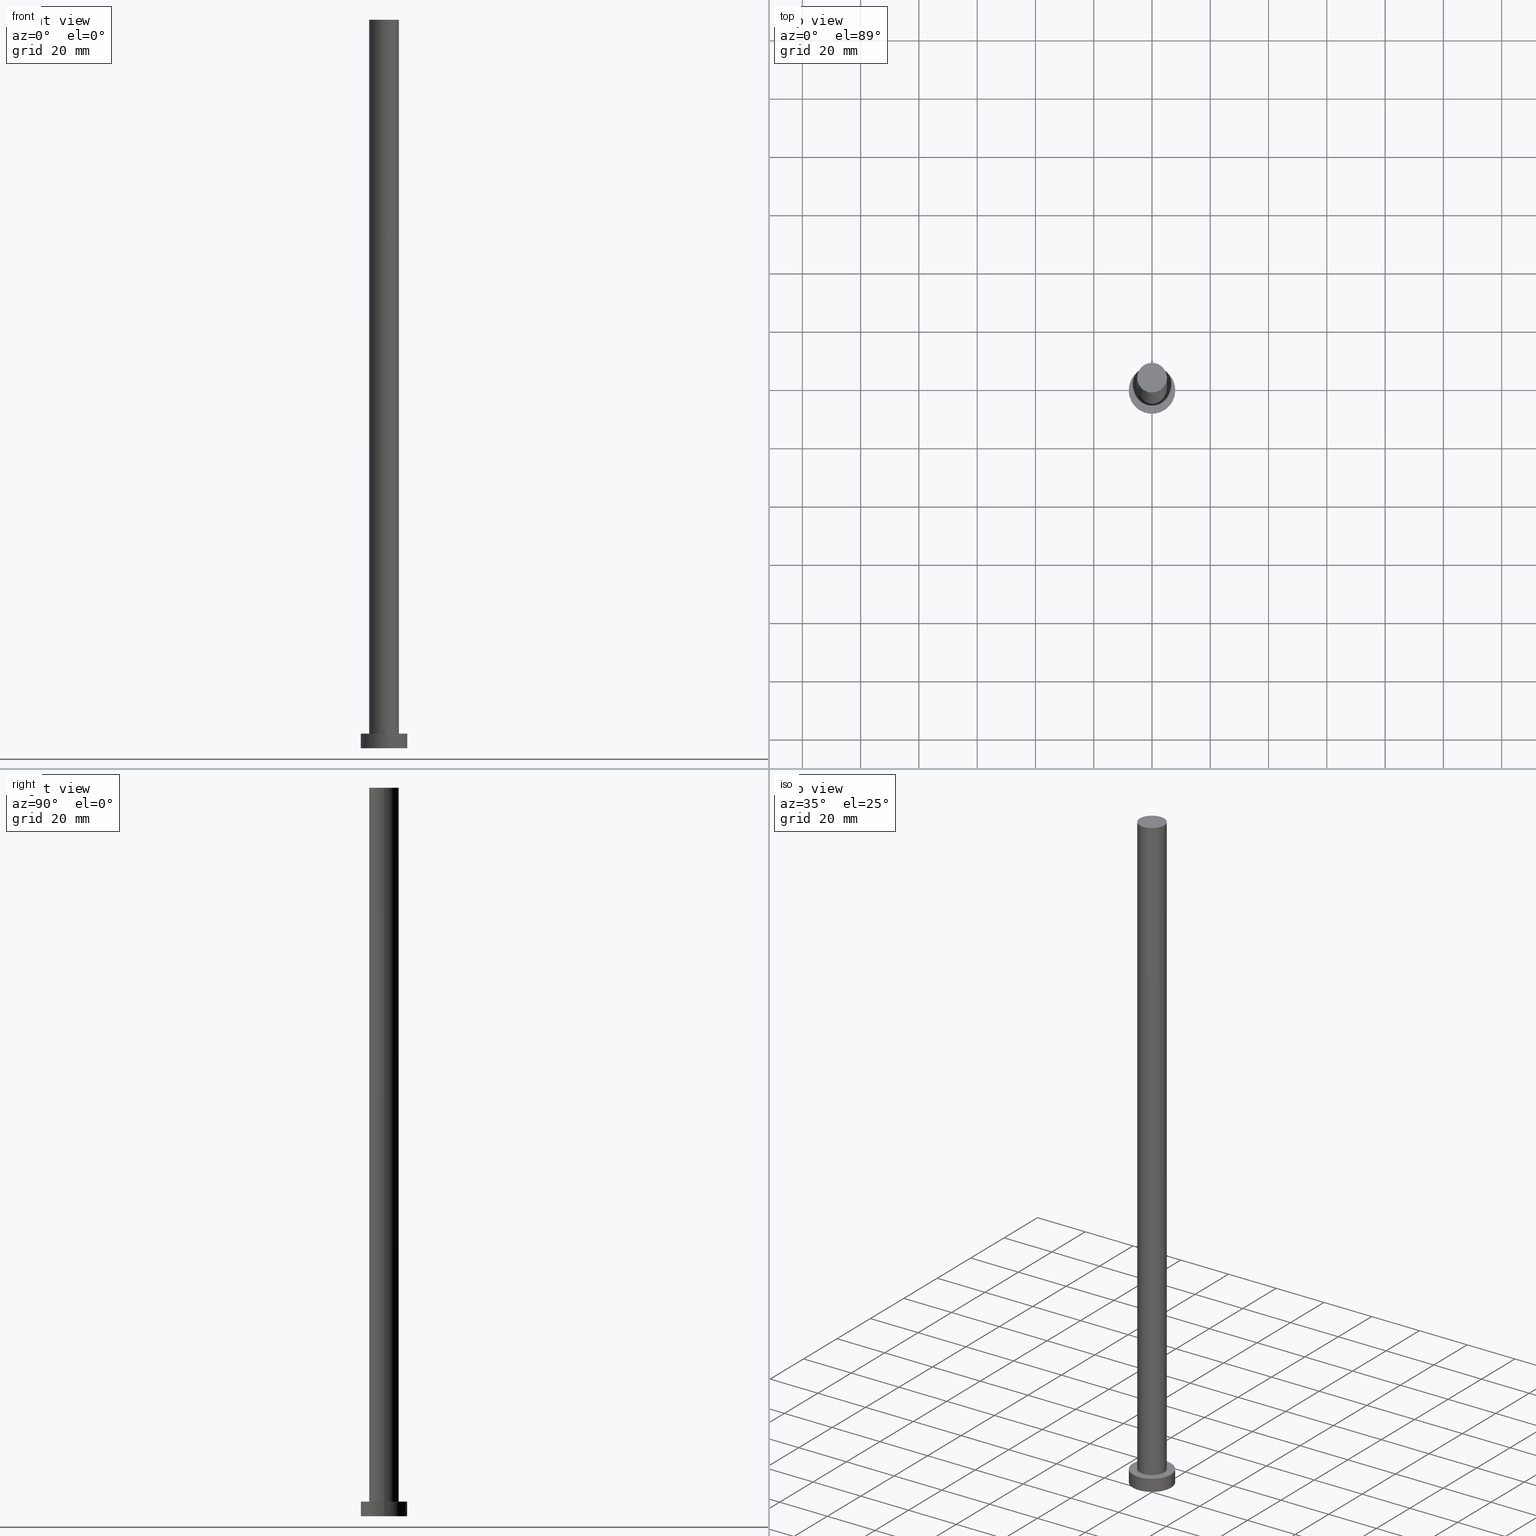
[diagram: canonical four-view strip — front | top / right | iso, engineering-drawing reading convention]
A machine part, canonical four-view strip (front | top / right | iso — engineering-drawing reading convention). The complete STEP part file that produces these views, byte-faithful:
ISO-10303-21;
HEADER;
FILE_DESCRIPTION (( 'STEP AP203' ),
    '1' );
FILE_NAME ('aee2.STEP',
    '2023-02-13T13:15:29',
    ( '' ),
    ( '' ),
    'SwSTEP 2.0',
    'SolidWorks 2019',
    '' );
FILE_SCHEMA (( 'CONFIG_CONTROL_DESIGN' ));
ENDSEC;

DATA;
#1 = CARTESIAN_POINT ( 'NONE',  ( 8.000000000000000000, 9.797174393178825657E-16, 0.000000000000000000 ) ) ;
#2 = CC_DESIGN_DATE_AND_TIME_ASSIGNMENT ( #148, #184, ( #109 ) ) ;
#3 = FACE_OUTER_BOUND ( 'NONE', #195, .T. ) ;
#4 = CYLINDRICAL_SURFACE ( 'NONE', #129, 8.000000000000000000 ) ;
#5 = DIRECTION ( 'NONE',  ( -0.000000000000000000, -0.000000000000000000, -1.000000000000000000 ) ) ;
#6 = CARTESIAN_POINT ( 'NONE',  ( 8.000000000000000000, 9.797174393178825657E-16, 5.000000000000000000 ) ) ;
#7 = PERSON_AND_ORGANIZATION ( #48, #46 ) ;
#8 = COORDINATED_UNIVERSAL_TIME_OFFSET ( 1, 0, .AHEAD. ) ;
#9 = DATE_AND_TIME ( #249, #32 ) ;
#10 = COORDINATED_UNIVERSAL_TIME_OFFSET ( 1, 0, .AHEAD. ) ;
#11 = SECURITY_CLASSIFICATION_LEVEL ( 'unclassified' ) ;
#12 = DATE_AND_TIME ( #229, #173 ) ;
#13 = ORIENTED_EDGE ( 'NONE', *, *, #187, .T. ) ;
#14 = CIRCLE ( 'NONE', #141, 8.000000000000000000 ) ;
#15 = EDGE_LOOP ( 'NONE', ( #133, #172, #217, #193 ) ) ;
#16 = CC_DESIGN_APPROVAL ( #194, ( #212 ) ) ;
#17 = ORIENTED_EDGE ( 'NONE', *, *, #101, .F. ) ;
#18 = ORIENTED_EDGE ( 'NONE', *, *, #251, .F. ) ;
#19 = DIRECTION ( 'NONE',  ( 1.000000000000000000, 0.000000000000000000, 0.000000000000000000 ) ) ;
#20 = CARTESIAN_POINT ( 'NONE',  ( -5.099999999999999645, 0.000000000000000000, 250.0000000000000000 ) ) ;
#21 = DIRECTION ( 'NONE',  ( 0.000000000000000000, 0.000000000000000000, 1.000000000000000000 ) ) ;
#22 = AXIS2_PLACEMENT_3D ( 'NONE', #241, #71, #64 ) ;
#23 = CC_DESIGN_SECURITY_CLASSIFICATION ( #109, ( #212 ) ) ;
#24 = FACE_OUTER_BOUND ( 'NONE', #15, .T. ) ;
#25 = EDGE_CURVE ( 'NONE', #192, #135, #233, .T. ) ;
#26 = CARTESIAN_POINT ( 'NONE',  ( 0.000000000000000000, 0.000000000000000000, 5.000000000000000000 ) ) ;
#27 = PERSON_AND_ORGANIZATION_ROLE ( 'design_supplier' ) ;
#28 = AXIS2_PLACEMENT_3D ( 'NONE', #26, #175, #41 ) ;
#29 = APPROVAL_STATUS ( 'not_yet_approved' ) ;
#30 = ADVANCED_FACE ( 'NONE', ( #36 ), #158, .T. ) ;
#31 = DIRECTION ( 'NONE',  ( 1.000000000000000000, 0.000000000000000000, 0.000000000000000000 ) ) ;
#32 = LOCAL_TIME ( 14, 15, 29.00000000000000000, #127 ) ;
#33 = APPROVAL_STATUS ( 'not_yet_approved' ) ;
#34 = VERTEX_POINT ( 'NONE', #139 ) ;
#35 = AXIS2_PLACEMENT_3D ( 'NONE', #85, #88, #106 ) ;
#36 = FACE_OUTER_BOUND ( 'NONE', #58, .T. ) ;
#37 = CC_DESIGN_APPROVAL ( #235, ( #109 ) ) ;
#38 = ORIENTED_EDGE ( 'NONE', *, *, #176, .T. ) ;
#39 = VERTEX_POINT ( 'NONE', #253 ) ;
#40 = AXIS2_PLACEMENT_3D ( 'NONE', #239, #67, #205 ) ;
#41 = DIRECTION ( 'NONE',  ( 1.000000000000000000, 0.000000000000000000, -0.000000000000000000 ) ) ;
#42 = CARTESIAN_POINT ( 'NONE',  ( 5.099999999999999645, 6.245698675651500839E-16, 250.0000000000000000 ) ) ;
#43 = DIRECTION ( 'NONE',  ( 0.000000000000000000, 0.000000000000000000, 1.000000000000000000 ) ) ;
#44 = CARTESIAN_POINT ( 'NONE',  ( 0.000000000000000000, 0.000000000000000000, 5.000000000000000000 ) ) ;
#45 = AXIS2_PLACEMENT_3D ( 'NONE', #177, #107, #145 ) ;
#46 = ORGANIZATION ( 'NEUR�EN�', 'NEUR�EN�', '' ) ;
#47 = FACE_OUTER_BOUND ( 'NONE', #170, .T. ) ;
#48 = PERSON ( 'NEUR�EN�', 'NEUR�EN�', 'NEUR�EN�', ('NEUR�EN�'), ('NEUR�EN�'), ('NEUR�EN�') ) ;
#49 = APPROVAL_STATUS ( 'not_yet_approved' ) ;
#50 = APPROVAL_ROLE ( '' ) ;
#51 = PERSON_AND_ORGANIZATION ( #48, #46 ) ;
#52 = MANIFOLD_SOLID_BREP ( 'P�idat vysunut�m3', #78 ) ;
#53 = CALENDAR_DATE ( 2023, 13, 2 ) ;
#54 = AXIS2_PLACEMENT_3D ( 'NONE', #117, #171, #140 ) ;
#55 = LOCAL_TIME ( 14, 15, 29.00000000000000000, #8 ) ;
#56 = UNCERTAINTY_MEASURE_WITH_UNIT (LENGTH_MEASURE( 1.000000000000000082E-05 ), #166, 'distance_accuracy_value', 'NONE');
#57 = ORIENTED_EDGE ( 'NONE', *, *, #130, .F. ) ;
#58 = EDGE_LOOP ( 'NONE', ( #154, #17, #95, #13 ) ) ;
#59 = AXIS2_PLACEMENT_3D ( 'NONE', #143, #221, #123 ) ;
#60 = ORIENTED_EDGE ( 'NONE', *, *, #222, .F. ) ;
#61 = APPROVAL_ROLE ( '' ) ;
#62 = DIRECTION ( 'NONE',  ( 0.000000000000000000, 0.000000000000000000, 1.000000000000000000 ) ) ;
#63 = APPROVAL_PERSON_ORGANIZATION ( #147, #155, #188 ) ;
#64 = DIRECTION ( 'NONE',  ( -1.000000000000000000, 0.000000000000000000, 0.000000000000000000 ) ) ;
#65 = ADVANCED_BREP_SHAPE_REPRESENTATION ( 'aee2', ( #52, #190 ), #164 ) ;
#66 = PLANE ( 'NONE',  #59 ) ;
#67 = DIRECTION ( 'NONE',  ( 0.000000000000000000, 0.000000000000000000, 1.000000000000000000 ) ) ;
#68 = PRODUCT_RELATED_PRODUCT_CATEGORY ( 'detail', '', ( #182 ) ) ;
#69 = LINE ( 'NONE', #105, #124 ) ;
#70 = CC_DESIGN_APPROVAL ( #155, ( #247 ) ) ;
#71 = DIRECTION ( 'NONE',  ( -0.000000000000000000, -0.000000000000000000, -1.000000000000000000 ) ) ;
#72 = DATE_AND_TIME ( #227, #207 ) ;
#73 = EDGE_CURVE ( 'NONE', #218, #39, #232, .T. ) ;
#74 = AXIS2_PLACEMENT_3D ( 'NONE', #44, #21, #236 ) ;
#75 = DIRECTION ( 'NONE',  ( 0.000000000000000000, 0.000000000000000000, 1.000000000000000000 ) ) ;
#76 = ADVANCED_FACE ( 'NONE', ( #121 ), #204, .F. ) ;
#77 = DATE_TIME_ROLE ( 'creation_date' ) ;
#78 = CLOSED_SHELL ( 'NONE', ( #196, #96, #93, #137, #76, #30, #231 ) ) ;
#79 = EDGE_LOOP ( 'NONE', ( #83, #134 ) ) ;
#80 = VERTEX_POINT ( 'NONE', #179 ) ;
#81 = EDGE_CURVE ( 'NONE', #116, #135, #69, .T. ) ;
#82 = ORIENTED_EDGE ( 'NONE', *, *, #112, .T. ) ;
#83 = ORIENTED_EDGE ( 'NONE', *, *, #25, .F. ) ;
#84 = FACE_OUTER_BOUND ( 'NONE', #254, .T. ) ;
#85 = CARTESIAN_POINT ( 'NONE',  ( 0.000000000000000000, 0.000000000000000000, 5.000000000000000000 ) ) ;
#86 = CYLINDRICAL_SURFACE ( 'NONE', #150, 8.000000000000000000 ) ;
#87 = DIRECTION ( 'NONE',  ( -0.000000000000000000, -0.000000000000000000, -1.000000000000000000 ) ) ;
#88 = DIRECTION ( 'NONE',  ( 0.000000000000000000, 0.000000000000000000, 1.000000000000000000 ) ) ;
#89 = CARTESIAN_POINT ( 'NONE',  ( -5.099999999999999645, 0.000000000000000000, 5.000000000000000000 ) ) ;
#90 = APPLICATION_PROTOCOL_DEFINITION ( 'international standard', 'config_control_design', 1994, #92 ) ;
#91 = PERSON_AND_ORGANIZATION ( #48, #46 ) ;
#92 = APPLICATION_CONTEXT ( 'configuration controlled 3d designs of mechanical parts and assemblies' ) ;
#93 = ADVANCED_FACE ( 'NONE', ( #24 ), #4, .T. ) ;
#94 = ORIENTED_EDGE ( 'NONE', *, *, #73, .T. ) ;
#95 = ORIENTED_EDGE ( 'NONE', *, *, #222, .T. ) ;
#96 = ADVANCED_FACE ( 'NONE', ( #84 ), #86, .T. ) ;
#97 = APPROVAL_DATE_TIME ( #12, #235 ) ;
#98 = DIRECTION ( 'NONE',  ( 1.000000000000000000, 0.000000000000000000, 0.000000000000000000 ) ) ;
#99 = ORIENTED_EDGE ( 'NONE', *, *, #130, .T. ) ;
#100 = VECTOR ( 'NONE', #237, 1000.000000000000000 ) ;
#101 = EDGE_CURVE ( 'NONE', #80, #218, #240, .T. ) ;
#102 = ORIENTED_EDGE ( 'NONE', *, *, #81, .T. ) ;
#103 = DIRECTION ( 'NONE',  ( 1.000000000000000000, 0.000000000000000000, 0.000000000000000000 ) ) ;
#104 = DIRECTION ( 'NONE',  ( -0.000000000000000000, -0.000000000000000000, -1.000000000000000000 ) ) ;
#105 = CARTESIAN_POINT ( 'NONE',  ( 8.000000000000000000, 9.797174393178825657E-16, 5.000000000000000000 ) ) ;
#106 = DIRECTION ( 'NONE',  ( 1.000000000000000000, 0.000000000000000000, 0.000000000000000000 ) ) ;
#107 = DIRECTION ( 'NONE',  ( 0.000000000000000000, 0.000000000000000000, 1.000000000000000000 ) ) ;
#108 = AXIS2_PLACEMENT_3D ( 'NONE', #162, #198, #103 ) ;
#109 = SECURITY_CLASSIFICATION ( '', '', #11 ) ;
#110 = COORDINATED_UNIVERSAL_TIME_OFFSET ( 1, 0, .AHEAD. ) ;
#111 = CC_DESIGN_PERSON_AND_ORGANIZATION_ASSIGNMENT ( #51, #210, ( #212 ) ) ;
#112 = EDGE_CURVE ( 'NONE', #34, #116, #14, .T. ) ;
#113 = LOCAL_TIME ( 14, 15, 29.00000000000000000, #110 ) ;
#114 = PERSON_AND_ORGANIZATION ( #48, #46 ) ;
#115 = CC_DESIGN_DATE_AND_TIME_ASSIGNMENT ( #72, #77, ( #247 ) ) ;
#116 = VERTEX_POINT ( 'NONE', #6 ) ;
#117 = CARTESIAN_POINT ( 'NONE',  ( 0.000000000000000000, 0.000000000000000000, 250.0000000000000000 ) ) ;
#118 = CARTESIAN_POINT ( 'NONE',  ( 5.099999999999999645, 6.245698675651500839E-16, 250.0000000000000000 ) ) ;
#119 = EDGE_CURVE ( 'NONE', #135, #192, #168, .T. ) ;
#120 = ORIENTED_EDGE ( 'NONE', *, *, #187, .F. ) ;
#121 = FACE_OUTER_BOUND ( 'NONE', #79, .T. ) ;
#122 = DIRECTION ( 'NONE',  ( -1.000000000000000000, 0.000000000000000000, 0.000000000000000000 ) ) ;
#123 = DIRECTION ( 'NONE',  ( 1.000000000000000000, 0.000000000000000000, -0.000000000000000000 ) ) ;
#124 = VECTOR ( 'NONE', #87, 1000.000000000000000 ) ;
#125 = FACE_OUTER_BOUND ( 'NONE', #174, .T. ) ;
#126 = CYLINDRICAL_SURFACE ( 'NONE', #22, 5.099999999999999645 ) ;
#127 = COORDINATED_UNIVERSAL_TIME_OFFSET ( 1, 0, .AHEAD. ) ;
#128 = DATE_AND_TIME ( #53, #55 ) ;
#129 = AXIS2_PLACEMENT_3D ( 'NONE', #200, #5, #122 ) ;
#130 = EDGE_CURVE ( 'NONE', #39, #255, #183, .T. ) ;
#131 = PERSON_AND_ORGANIZATION ( #48, #46 ) ;
#132 = APPROVAL_PERSON_ORGANIZATION ( #191, #194, #50 ) ;
#133 = ORIENTED_EDGE ( 'NONE', *, *, #81, .F. ) ;
#134 = ORIENTED_EDGE ( 'NONE', *, *, #119, .F. ) ;
#135 = VERTEX_POINT ( 'NONE', #1 ) ;
#136 = CC_DESIGN_PERSON_AND_ORGANIZATION_ASSIGNMENT ( #131, #189, ( #109 ) ) ;
#137 = ADVANCED_FACE ( 'NONE', ( #224, #47 ), #146, .T. ) ;
#138 = SHAPE_DEFINITION_REPRESENTATION ( #244, #65 ) ;
#139 = CARTESIAN_POINT ( 'NONE',  ( -8.000000000000000000, 0.000000000000000000, 5.000000000000000000 ) ) ;
#140 = DIRECTION ( 'NONE',  ( -1.000000000000000000, 0.000000000000000000, 0.000000000000000000 ) ) ;
#141 = AXIS2_PLACEMENT_3D ( 'NONE', #144, #223, #19 ) ;
#142 = CARTESIAN_POINT ( 'NONE',  ( -8.000000000000000000, 0.000000000000000000, 5.000000000000000000 ) ) ;
#143 = CARTESIAN_POINT ( 'NONE',  ( 0.000000000000000000, 0.000000000000000000, 250.0000000000000000 ) ) ;
#144 = CARTESIAN_POINT ( 'NONE',  ( 0.000000000000000000, 0.000000000000000000, 5.000000000000000000 ) ) ;
#145 = DIRECTION ( 'NONE',  ( 1.000000000000000000, 0.000000000000000000, 0.000000000000000000 ) ) ;
#146 = PLANE ( 'NONE',  #28 ) ;
#147 = PERSON_AND_ORGANIZATION ( #48, #46 ) ;
#148 = DATE_AND_TIME ( #186, #113 ) ;
#149 = CC_DESIGN_PERSON_AND_ORGANIZATION_ASSIGNMENT ( #226, #152, ( #247 ) ) ;
#150 = AXIS2_PLACEMENT_3D ( 'NONE', #180, #160, #238 ) ;
#151 = APPROVAL_DATE_TIME ( #9, #155 ) ;
#152 = PERSON_AND_ORGANIZATION_ROLE ( 'creator' ) ;
#153 = AXIS2_PLACEMENT_3D ( 'NONE', #214, #62, #98 ) ;
#154 = ORIENTED_EDGE ( 'NONE', *, *, #73, .F. ) ;
#155 = APPROVAL ( #49, 'NEUR�EN�' ) ;
#156 = CIRCLE ( 'NONE', #202, 5.099999999999999645 ) ;
#157 = ORIENTED_EDGE ( 'NONE', *, *, #201, .F. ) ;
#158 = CYLINDRICAL_SURFACE ( 'NONE', #54, 5.099999999999999645 ) ;
#159 = CC_DESIGN_PERSON_AND_ORGANIZATION_ASSIGNMENT ( #114, #246, ( #182 ) ) ;
#160 = DIRECTION ( 'NONE',  ( -0.000000000000000000, -0.000000000000000000, -1.000000000000000000 ) ) ;
#161 = LINE ( 'NONE', #142, #215 ) ;
#162 = CARTESIAN_POINT ( 'NONE',  ( 0.000000000000000000, 0.000000000000000000, 0.000000000000000000 ) ) ;
#163 = CARTESIAN_POINT ( 'NONE',  ( 0.000000000000000000, 0.000000000000000000, 0.000000000000000000 ) ) ;
#164 =( GEOMETRIC_REPRESENTATION_CONTEXT ( 3 ) GLOBAL_UNCERTAINTY_ASSIGNED_CONTEXT ( ( #56 ) ) GLOBAL_UNIT_ASSIGNED_CONTEXT ( ( #166, #209, #248 ) ) REPRESENTATION_CONTEXT ( 'NONE', 'WORKASPACE' ) );
#165 = CARTESIAN_POINT ( 'NONE',  ( -8.000000000000000000, 0.000000000000000000, 0.000000000000000000 ) ) ;
#166 =( LENGTH_UNIT ( ) NAMED_UNIT ( * ) SI_UNIT ( .MILLI., .METRE. ) );
#167 = CARTESIAN_POINT ( 'NONE',  ( 0.000000000000000000, 0.000000000000000000, 250.0000000000000000 ) ) ;
#168 = CIRCLE ( 'NONE', #108, 8.000000000000000000 ) ;
#169 = VECTOR ( 'NONE', #104, 1000.000000000000000 ) ;
#170 = EDGE_LOOP ( 'NONE', ( #82, #38 ) ) ;
#171 = DIRECTION ( 'NONE',  ( -0.000000000000000000, -0.000000000000000000, -1.000000000000000000 ) ) ;
#172 = ORIENTED_EDGE ( 'NONE', *, *, #112, .F. ) ;
#173 = LOCAL_TIME ( 14, 15, 29.00000000000000000, #216 ) ;
#174 = EDGE_LOOP ( 'NONE', ( #18, #94, #99, #60 ) ) ;
#175 = DIRECTION ( 'NONE',  ( 0.000000000000000000, 0.000000000000000000, 1.000000000000000000 ) ) ;
#176 = EDGE_CURVE ( 'NONE', #116, #34, #245, .T. ) ;
#177 = CARTESIAN_POINT ( 'NONE',  ( 0.000000000000000000, 0.000000000000000000, 5.000000000000000000 ) ) ;
#178 = CIRCLE ( 'NONE', #74, 5.099999999999999645 ) ;
#179 = CARTESIAN_POINT ( 'NONE',  ( -5.099999999999999645, 0.000000000000000000, 250.0000000000000000 ) ) ;
#180 = CARTESIAN_POINT ( 'NONE',  ( 0.000000000000000000, 0.000000000000000000, 5.000000000000000000 ) ) ;
#181 = DIRECTION ( 'NONE',  ( 1.000000000000000000, 0.000000000000000000, -0.000000000000000000 ) ) ;
#182 = PRODUCT ( 'aee2', 'aee2', '', ( #211 ) ) ;
#183 = CIRCLE ( 'NONE', #45, 5.099999999999999645 ) ;
#184 = DATE_TIME_ROLE ( 'classification_date' ) ;
#185 = CC_DESIGN_PERSON_AND_ORGANIZATION_ASSIGNMENT ( #91, #27, ( #212 ) ) ;
#186 = CALENDAR_DATE ( 2023, 13, 2 ) ;
#187 = EDGE_CURVE ( 'NONE', #255, #39, #178, .T. ) ;
#188 = APPROVAL_ROLE ( '' ) ;
#189 = PERSON_AND_ORGANIZATION_ROLE ( 'classification_officer' ) ;
#190 = AXIS2_PLACEMENT_3D ( 'NONE', #242, #208, #243 ) ;
#191 = PERSON_AND_ORGANIZATION ( #48, #46 ) ;
#192 = VERTEX_POINT ( 'NONE', #165 ) ;
#193 = ORIENTED_EDGE ( 'NONE', *, *, #25, .T. ) ;
#194 = APPROVAL ( #33, 'NEUR�EN�' ) ;
#195 = EDGE_LOOP ( 'NONE', ( #213, #252 ) ) ;
#196 = ADVANCED_FACE ( 'NONE', ( #125 ), #126, .T. ) ;
#197 = EDGE_LOOP ( 'NONE', ( #120, #57 ) ) ;
#198 = DIRECTION ( 'NONE',  ( 0.000000000000000000, 0.000000000000000000, 1.000000000000000000 ) ) ;
#199 = LINE ( 'NONE', #20, #169 ) ;
#200 = CARTESIAN_POINT ( 'NONE',  ( 0.000000000000000000, 0.000000000000000000, 5.000000000000000000 ) ) ;
#201 = EDGE_CURVE ( 'NONE', #34, #192, #161, .T. ) ;
#202 = AXIS2_PLACEMENT_3D ( 'NONE', #167, #75, #31 ) ;
#203 = APPROVAL_PERSON_ORGANIZATION ( #7, #235, #61 ) ;
#204 = PLANE ( 'NONE',  #219 ) ;
#205 = DIRECTION ( 'NONE',  ( 1.000000000000000000, 0.000000000000000000, 0.000000000000000000 ) ) ;
#206 = APPROVAL_DATE_TIME ( #128, #194 ) ;
#207 = LOCAL_TIME ( 14, 15, 29.00000000000000000, #10 ) ;
#208 = DIRECTION ( 'NONE',  ( 0.000000000000000000, 0.000000000000000000, 1.000000000000000000 ) ) ;
#209 =( NAMED_UNIT ( * ) PLANE_ANGLE_UNIT ( ) SI_UNIT ( $, .RADIAN. ) );
#210 = PERSON_AND_ORGANIZATION_ROLE ( 'creator' ) ;
#211 = MECHANICAL_CONTEXT ( 'NONE', #250, 'mechanical' ) ;
#212 = PRODUCT_DEFINITION_FORMATION_WITH_SPECIFIED_SOURCE ( 'LIBOVOLN�', '', #182, .NOT_KNOWN. ) ;
#213 = ORIENTED_EDGE ( 'NONE', *, *, #101, .T. ) ;
#214 = CARTESIAN_POINT ( 'NONE',  ( 0.000000000000000000, 0.000000000000000000, 0.000000000000000000 ) ) ;
#215 = VECTOR ( 'NONE', #220, 1000.000000000000000 ) ;
#216 = COORDINATED_UNIVERSAL_TIME_OFFSET ( 1, 0, .AHEAD. ) ;
#217 = ORIENTED_EDGE ( 'NONE', *, *, #201, .T. ) ;
#218 = VERTEX_POINT ( 'NONE', #42 ) ;
#219 = AXIS2_PLACEMENT_3D ( 'NONE', #163, #43, #181 ) ;
#220 = DIRECTION ( 'NONE',  ( -0.000000000000000000, -0.000000000000000000, -1.000000000000000000 ) ) ;
#221 = DIRECTION ( 'NONE',  ( 0.000000000000000000, 0.000000000000000000, 1.000000000000000000 ) ) ;
#222 = EDGE_CURVE ( 'NONE', #80, #255, #199, .T. ) ;
#223 = DIRECTION ( 'NONE',  ( 0.000000000000000000, 0.000000000000000000, 1.000000000000000000 ) ) ;
#224 = FACE_BOUND ( 'NONE', #197, .T. ) ;
#225 = APPLICATION_PROTOCOL_DEFINITION ( 'international standard', 'config_control_design', 1994, #250 ) ;
#226 = PERSON_AND_ORGANIZATION ( #48, #46 ) ;
#227 = CALENDAR_DATE ( 2023, 13, 2 ) ;
#228 = DESIGN_CONTEXT ( 'detailed design', #92, 'design' ) ;
#229 = CALENDAR_DATE ( 2023, 13, 2 ) ;
#230 = ORIENTED_EDGE ( 'NONE', *, *, #176, .F. ) ;
#231 = ADVANCED_FACE ( 'NONE', ( #3 ), #66, .T. ) ;
#232 = LINE ( 'NONE', #118, #100 ) ;
#233 = CIRCLE ( 'NONE', #153, 8.000000000000000000 ) ;
#234 = ORIENTED_EDGE ( 'NONE', *, *, #119, .T. ) ;
#235 = APPROVAL ( #29, 'NEUR�EN�' ) ;
#236 = DIRECTION ( 'NONE',  ( 1.000000000000000000, 0.000000000000000000, 0.000000000000000000 ) ) ;
#237 = DIRECTION ( 'NONE',  ( -0.000000000000000000, -0.000000000000000000, -1.000000000000000000 ) ) ;
#238 = DIRECTION ( 'NONE',  ( -1.000000000000000000, 0.000000000000000000, 0.000000000000000000 ) ) ;
#239 = CARTESIAN_POINT ( 'NONE',  ( 0.000000000000000000, 0.000000000000000000, 250.0000000000000000 ) ) ;
#240 = CIRCLE ( 'NONE', #40, 5.099999999999999645 ) ;
#241 = CARTESIAN_POINT ( 'NONE',  ( 0.000000000000000000, 0.000000000000000000, 250.0000000000000000 ) ) ;
#242 = CARTESIAN_POINT ( 'NONE',  ( 0.000000000000000000, 0.000000000000000000, 0.000000000000000000 ) ) ;
#243 = DIRECTION ( 'NONE',  ( 1.000000000000000000, 0.000000000000000000, 0.000000000000000000 ) ) ;
#244 = PRODUCT_DEFINITION_SHAPE ( 'NONE', 'NONE',  #247 ) ;
#245 = CIRCLE ( 'NONE', #35, 8.000000000000000000 ) ;
#246 = PERSON_AND_ORGANIZATION_ROLE ( 'design_owner' ) ;
#247 = PRODUCT_DEFINITION ( 'NEZN�M�', '', #212, #228 ) ;
#248 =( NAMED_UNIT ( * ) SI_UNIT ( $, .STERADIAN. ) SOLID_ANGLE_UNIT ( ) );
#249 = CALENDAR_DATE ( 2023, 13, 2 ) ;
#250 = APPLICATION_CONTEXT ( 'configuration controlled 3d designs of mechanical parts and assemblies' ) ;
#251 = EDGE_CURVE ( 'NONE', #218, #80, #156, .T. ) ;
#252 = ORIENTED_EDGE ( 'NONE', *, *, #251, .T. ) ;
#253 = CARTESIAN_POINT ( 'NONE',  ( 5.099999999999999645, 6.245698675651500839E-16, 5.000000000000000000 ) ) ;
#254 = EDGE_LOOP ( 'NONE', ( #230, #102, #234, #157 ) ) ;
#255 = VERTEX_POINT ( 'NONE', #89 ) ;
ENDSEC;
END-ISO-10303-21;
